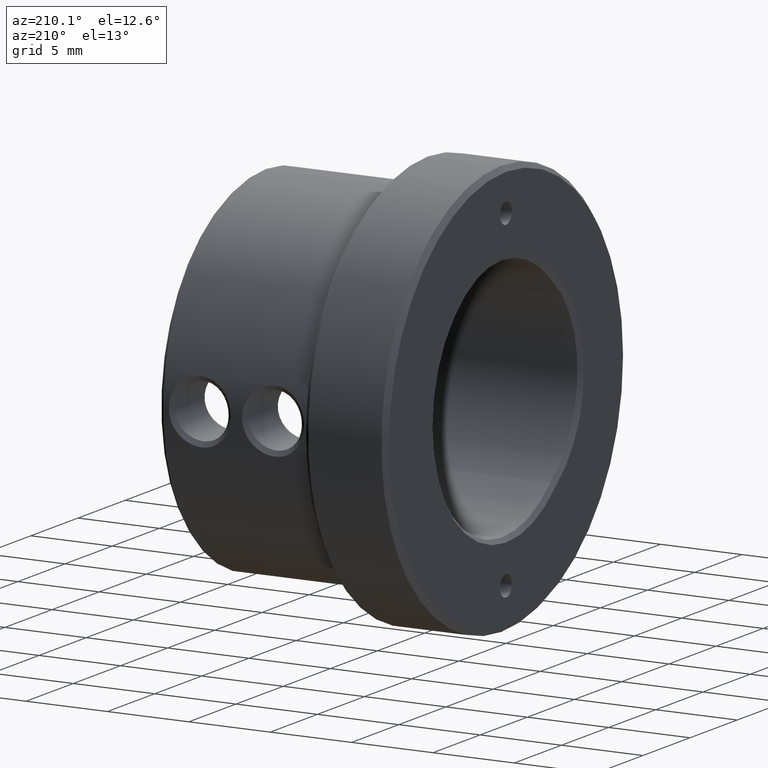
[diagram: clean part render]
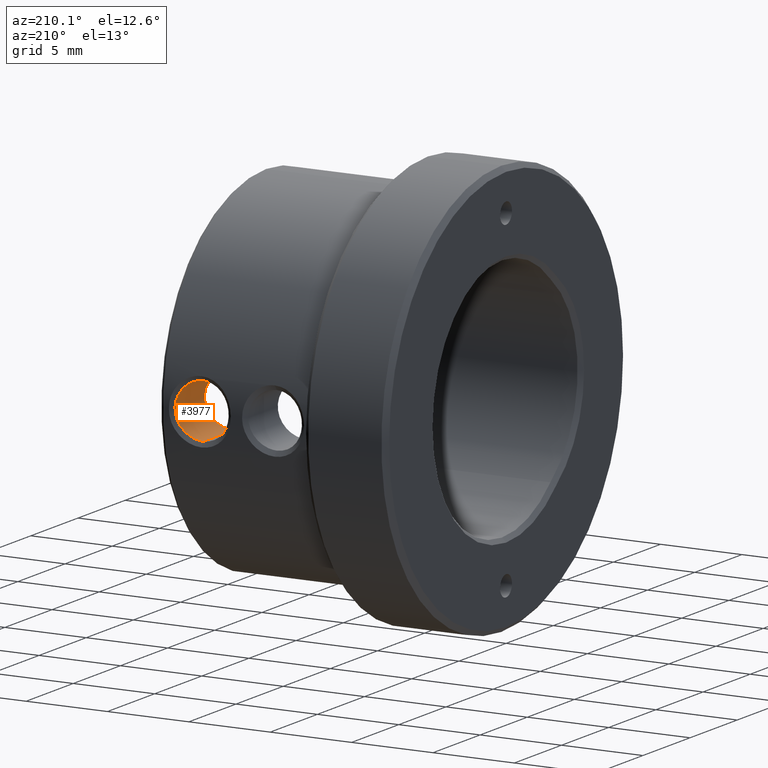
[diagram: same view with one face highlighted and labeled with its STEP entity id]
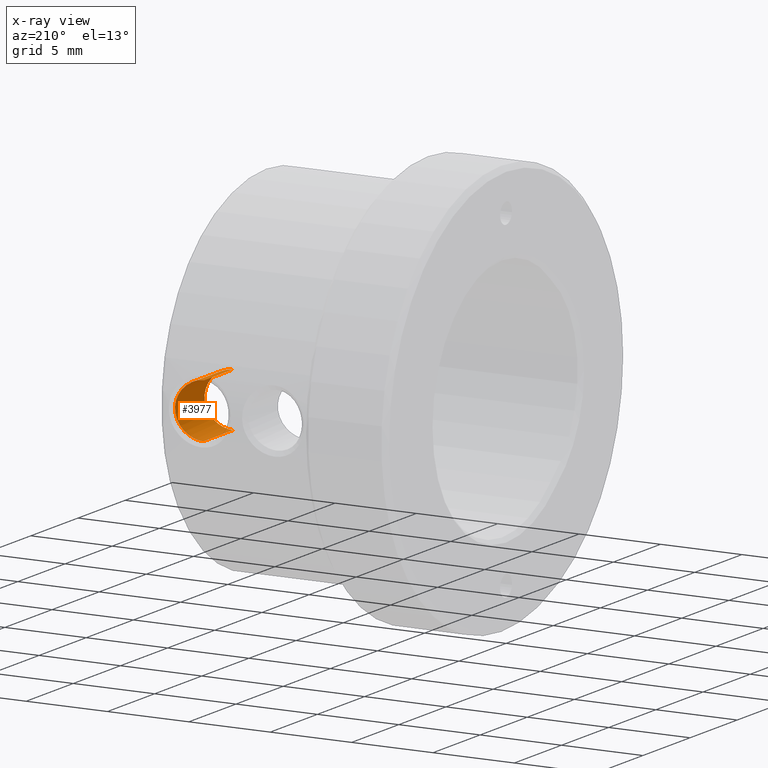
[diagram: x-ray of the same camera — body ghosted, the highlighted face saturated]
A machine part, auxiliary view. The second image highlights one B-rep face of the part: STEP entity #3977.
The next image is the same camera in x-ray: the body ghosted, the highlighted face saturated — about 0% of this face is hidden behind the body in this view.
In plain terms, the highlighted cylindrical surface (edge-blend (fillet) strip) has radius 1.65 mm, axis along (-0, 1, -0).
Its self-contained STEP definition (entity closure, byte-faithful):
#10 = EDGE_CURVE ( 'NONE', #283, #187, #2825, .T. ) ;
#29 = CARTESIAN_POINT ( 'NONE',  ( 13.50185279266266400, 10.57449944078282700, -1.311301422417678000 ) ) ;
#43 = CARTESIAN_POINT ( 'NONE',  ( 13.22997486242653200, 10.54482934213149100, -1.479990838061502800 ) ) ;
#90 = CARTESIAN_POINT ( 'NONE',  ( 14.15004257525060200, 7.550009304524274400, -0.1073363608088380200 ) ) ;
#150 = VERTEX_POINT ( 'NONE', #613 ) ;
#169 = CARTESIAN_POINT ( 'NONE',  ( 13.54514331149817600, 10.58009921703687300, 1.276785054033434000 ) ) ;
#187 = VERTEX_POINT ( 'NONE', #2838 ) ;
#200 = CARTESIAN_POINT ( 'NONE',  ( 13.52659363472409900, 10.57767985099839900, 1.291781707351821600 ) ) ;
#223 = CARTESIAN_POINT ( 'NONE',  ( 12.49999999999999800, 7.367496182557546900, -1.649999999999992600 ) ) ;
#234 = CARTESIAN_POINT ( 'NONE',  ( 14.04555390142505500, 10.66126705180824900, 0.5804709319123321200 ) ) ;
#248 = CARTESIAN_POINT ( 'NONE',  ( 13.99843976921971300, 10.65232787928356700, -0.6917183942162197200 ) ) ;
#260 = CARTESIAN_POINT ( 'NONE',  ( 13.85736222332688200, 10.62715379780379300, 0.9381398473110560400 ) ) ;
#274 = CARTESIAN_POINT ( 'NONE',  ( 13.76868341134703800, 10.61256824454002500, 1.054963706749407300 ) ) ;
#283 = VERTEX_POINT ( 'NONE', #3161 ) ;
#287 = CARTESIAN_POINT ( 'NONE',  ( 13.84659033749507500, 10.62532484020320000, 0.9536653411383090300 ) ) ;
#292 = EDGE_CURVE ( 'NONE', #1217, #187, #3208, .T. ) ;
#300 = CARTESIAN_POINT ( 'NONE',  ( 13.43818574098022500, 10.56675286552428300, -1.357330230713237300 ) ) ;
#312 = CARTESIAN_POINT ( 'NONE',  ( 12.92561353315698500, 10.52262158181047400, -1.594379576122770600 ) ) ;
#325 = CARTESIAN_POINT ( 'NONE',  ( 12.71596198067352800, 10.51341321344201600, -1.639505609610363700 ) ) ;
#328 = ORIENTED_EDGE ( 'NONE', *, *, #292, .F. ) ;
#338 = CARTESIAN_POINT ( 'NONE',  ( 13.61775947371149800, 10.58995085707568300, -1.214019414381698000 ) ) ;
#343 = CARTESIAN_POINT ( 'NONE',  ( 13.03250685552225500, 7.386047717079979000, -1.565433213492498200 ) ) ;
#349 = CARTESIAN_POINT ( 'NONE',  ( 13.15851967719978300, 10.53856377268618900, -1.513156677934572000 ) ) ;
#353 = CARTESIAN_POINT ( 'NONE',  ( 13.94149156987591600, 7.506756197861075300, 0.8311245946401043500 ) ) ;
#372 = CARTESIAN_POINT ( 'NONE',  ( 12.50000000000000000, 7.367496182557546000, 1.649999999999992600 ) ) ;
#409 = CARTESIAN_POINT ( 'NONE',  ( 12.49999999999999800, 12.69999999999999900, 0.0000000000000000000 ) ) ;
#423 = DIRECTION ( 'NONE',  ( 0.0000000000000000000, 0.0000000000000000000, 1.000000000000000000 ) ) ;
#498 = CARTESIAN_POINT ( 'NONE',  ( 13.41146711296734800, 10.56364087475635900, 1.375414028493472200 ) ) ;
#525 = VECTOR ( 'NONE', #1282, 1000.000000000000000 ) ;
#542 = CARTESIAN_POINT ( 'NONE',  ( 12.68763361166880600, 10.51338699674829000, 1.639519292952530600 ) ) ;
#554 = CARTESIAN_POINT ( 'NONE',  ( 14.13953683889284100, 10.67994984387369500, -0.1874946902816051200 ) ) ;
#570 = CARTESIAN_POINT ( 'NONE',  ( 13.92375585450378000, 10.63868444366616300, -0.8346840645606628000 ) ) ;
#587 = CARTESIAN_POINT ( 'NONE',  ( 14.10740163368346100, 10.67345024491159400, 0.3734444621139737500 ) ) ;
#601 = CARTESIAN_POINT ( 'NONE',  ( 13.71259541929947200, 10.60381709771139700, 1.119299904623153800 ) ) ;
#612 = CARTESIAN_POINT ( 'NONE',  ( 13.96089013539053700, 10.64539991397740000, -0.7671114348613753400 ) ) ;
#613 = CARTESIAN_POINT ( 'NONE',  ( 12.49999999999999800, 10.51119895810497000, 1.649999999999992600 ) ) ;
#625 = VECTOR ( 'NONE', #1392, 1000.000000000000000 ) ;
#659 = CARTESIAN_POINT ( 'NONE',  ( 13.55419953222639200, 10.58129489622965000, -1.269318168254338900 ) ) ;
#663 = CARTESIAN_POINT ( 'NONE',  ( 14.10626795706226800, 7.540131790491947200, 0.4342456539264571400 ) ) ;
#672 = CARTESIAN_POINT ( 'NONE',  ( 13.02862767469658000, 10.52870889627910600, -1.563954364623509500 ) ) ;
#706 = CARTESIAN_POINT ( 'NONE',  ( 14.06564643860013100, 7.531905221089373500, -0.5319720460853245600 ) ) ;
#773 = EDGE_CURVE ( 'NONE', #2581, #150, #817, .T. ) ;
#802 = CARTESIAN_POINT ( 'NONE',  ( 13.45737666294394500, 10.56901595150095800, 1.344121261782239800 ) ) ;
#814 = CARTESIAN_POINT ( 'NONE',  ( 13.53522367523122200, 10.57880152814122500, 1.284844636623512200 ) ) ;
#817 = LINE ( 'NONE', #2322, #625 ) ;
#856 = CARTESIAN_POINT ( 'NONE',  ( 13.33448281686945000, 10.55511831941670800, 1.423871994860604500 ) ) ;
#870 = CARTESIAN_POINT ( 'NONE',  ( 14.08750258551296000, 10.66948109065736500, 0.4506299316650356200 ) ) ;
#897 = CARTESIAN_POINT ( 'NONE',  ( 14.01455598987642200, 10.65536926290475600, -0.6552092336251627000 ) ) ;
#912 = CARTESIAN_POINT ( 'NONE',  ( 13.94258831132795400, 10.64207825610930400, 0.8010068146281015300 ) ) ;
#926 = CARTESIAN_POINT ( 'NONE',  ( 13.89873399495124900, 10.63428317704780900, -0.8754318599575081600 ) ) ;
#940 = CARTESIAN_POINT ( 'NONE',  ( 12.87453070639070100, 10.52003358061235100, -1.607146496849080700 ) ) ;
#949 = CARTESIAN_POINT ( 'NONE',  ( 13.45357759165216800, 10.56857639788674100, -1.346650817351740000 ) ) ;
#951 = CARTESIAN_POINT ( 'NONE',  ( 12.49999999999999800, 12.69999999999999900, -1.649999999999992600 ) ) ;
#964 = CARTESIAN_POINT ( 'NONE',  ( 13.69334224132248700, 10.60089397097828500, -1.140085640883579100 ) ) ;
#984 = CARTESIAN_POINT ( 'NONE',  ( 12.92963808625788700, 7.379251367485811600, -1.596753308477471000 ) ) ;
#999 = CYLINDRICAL_SURFACE ( 'NONE', #3582, 1.649999999999992600 ) ;
#1126 = CARTESIAN_POINT ( 'NONE',  ( 12.87280304157318000, 10.51982800809529900, 1.608163244559296600 ) ) ;
#1140 = CARTESIAN_POINT ( 'NONE',  ( 13.25363207138168400, 10.54707123045887400, 1.467898964334117400 ) ) ;
#1171 = CARTESIAN_POINT ( 'NONE',  ( 12.50007305001105000, 10.51119895833771200, -1.649999998447612100 ) ) ;
#1182 = CARTESIAN_POINT ( 'NONE',  ( 14.10811840686909800, 10.67359280389430200, -0.3729758846689149600 ) ) ;
#1196 = CARTESIAN_POINT ( 'NONE',  ( 14.09459451958072100, 10.67089056271104800, 0.4248165443753121300 ) ) ;
#1213 = CARTESIAN_POINT ( 'NONE',  ( 13.87977035692995600, 10.63099251425032100, -0.9048664149488915300 ) ) ;
#1217 = VERTEX_POINT ( 'NONE', #223 ) ;
#1229 = CARTESIAN_POINT ( 'NONE',  ( 13.90205205895523100, 10.63485839146387600, 0.8703360134052400300 ) ) ;
#1241 = CARTESIAN_POINT ( 'NONE',  ( 13.88743421362764300, 10.63231914884653600, -0.8930709768100814100 ) ) ;
#1252 = CARTESIAN_POINT ( 'NONE',  ( 13.42400809575222800, 10.56508959228669300, -1.367026029683493700 ) ) ;
#1281 = CARTESIAN_POINT ( 'NONE',  ( 13.71340142044455000, 10.60393948327767800, -1.118430746917566500 ) ) ;
#1282 = DIRECTION ( 'NONE',  ( -0.0000000000000000000, 1.000000000000000000, -0.0000000000000000000 ) ) ;
#1292 = CARTESIAN_POINT ( 'NONE',  ( 13.74937763421038300, 10.60949665413757600, -1.078093627623458500 ) ) ;
#1297 = CARTESIAN_POINT ( 'NONE',  ( 12.60787042510165500, 7.367496182557549600, -1.649999999999993700 ) ) ;
#1307 = CARTESIAN_POINT ( 'NONE',  ( 13.30196903907764200, 10.55181405158933700, -1.442052725753269600 ) ) ;
#1311 = CARTESIAN_POINT ( 'NONE',  ( 14.14991446245525700, 7.549981306365785000, 0.2166302022949852200 ) ) ;
#1338 = CARTESIAN_POINT ( 'NONE',  ( 13.81866656118989500, 7.483076724350285100, 1.014718489095182800 ) ) ;
#1392 = DIRECTION ( 'NONE',  ( -0.0000000000000000000, 1.000000000000000000, -0.0000000000000000000 ) ) ;
#1415 = ORIENTED_EDGE ( 'NONE', *, *, #3099, .F. ) ;
#1435 = CARTESIAN_POINT ( 'NONE',  ( 13.00198156321303600, 10.52709918790123200, 1.572020120420941900 ) ) ;
#1444 = CARTESIAN_POINT ( 'NONE',  ( 13.26721656025556800, 10.54837561431051200, 1.460834341006131500 ) ) ;
#1486 = CARTESIAN_POINT ( 'NONE',  ( 13.43643056384002900, 10.56652183792695600, 1.358740064865041000 ) ) ;
#1495 = FACE_OUTER_BOUND ( 'NONE', #3673, .T. ) ;
#1501 = CARTESIAN_POINT ( 'NONE',  ( 13.83509244026767400, 10.62339561440419400, 0.9696441092873896400 ) ) ;
#1516 = CARTESIAN_POINT ( 'NONE',  ( 13.84398699523571500, 10.62487612993530000, -0.9575590198727382800 ) ) ;
#1529 = CARTESIAN_POINT ( 'NONE',  ( 13.85855553763005900, 10.62734714894130900, -0.9366987494135882200 ) ) ;
#1542 = CARTESIAN_POINT ( 'NONE',  ( 14.11283887027854600, 10.67454439854736100, 0.3492805228495125500 ) ) ;
#1555 = CARTESIAN_POINT ( 'NONE',  ( 13.79369876186423700, 10.61656378894717700, 1.024562569287823100 ) ) ;
#1581 = CARTESIAN_POINT ( 'NONE',  ( 13.64119420932378700, 10.59325214387721000, -1.192282160429885900 ) ) ;
#1606 = CARTESIAN_POINT ( 'NONE',  ( 13.42803921057861100, 10.56556037963180800, -1.364287749492495400 ) ) ;
#1743 = CARTESIAN_POINT ( 'NONE',  ( 13.22908984128689400, 10.54477632589443600, 1.480242099063689300 ) ) ;
#1759 = CARTESIAN_POINT ( 'NONE',  ( 13.64191043547844400, 10.59335887204389700, 1.191540974571782000 ) ) ;
#1788 = CARTESIAN_POINT ( 'NONE',  ( 13.04101187701747100, 10.52963640937855100, 1.559215111295309000 ) ) ;
#1804 = CARTESIAN_POINT ( 'NONE',  ( 13.78533431137923200, 10.61523347467841200, -1.034615442761742400 ) ) ;
#1818 = CARTESIAN_POINT ( 'NONE',  ( 13.88715012517975100, 10.63225563174813000, 0.8939457706591248400 ) ) ;
#1833 = CARTESIAN_POINT ( 'NONE',  ( 13.79217119321132000, 10.61633553422964100, -1.026102104697988100 ) ) ;
#1845 = CARTESIAN_POINT ( 'NONE',  ( 13.86438660171439900, 10.62835082104898600, 0.9278942717195518600 ) ) ;
#1859 = CARTESIAN_POINT ( 'NONE',  ( 14.14745026336718300, 10.68156881530488200, -0.1065309795955218100 ) ) ;
#1869 = CARTESIAN_POINT ( 'NONE',  ( 13.55967089348821200, 10.58202137119916800, -1.264768244759091800 ) ) ;
#1879 = CARTESIAN_POINT ( 'NONE',  ( 13.25470755418212200, 10.54714363768899200, -1.467553317740013100 ) ) ;
#1918 = CARTESIAN_POINT ( 'NONE',  ( 13.37081464908583000, 10.55904684068613600, -1.401751601075685000 ) ) ;
#1937 = CARTESIAN_POINT ( 'NONE',  ( 12.71741357021782000, 7.369941011968327500, -1.639189236416049600 ) ) ;
#2046 = CARTESIAN_POINT ( 'NONE',  ( 13.54099817502924100, 10.57955522987302800, 1.280170534579369500 ) ) ;
#2098 = CARTESIAN_POINT ( 'NONE',  ( 13.10628566926367500, 10.53442527370225300, 1.534637921585598800 ) ) ;
#2113 = CARTESIAN_POINT ( 'NONE',  ( 13.94825265187140100, 10.64310193889314800, 0.7907334479613519200 ) ) ;
#2125 = CARTESIAN_POINT ( 'NONE',  ( 14.00312008477333400, 10.65321824740290800, 0.6806644647905491000 ) ) ;
#2142 = CARTESIAN_POINT ( 'NONE',  ( 13.77181548391838500, 10.61306726887703500, 1.051185709402028000 ) ) ;
#2157 = CARTESIAN_POINT ( 'NONE',  ( 13.75160630099867900, 10.60986189123555900, 1.075267538223696000 ) ) ;
#2170 = CARTESIAN_POINT ( 'NONE',  ( 14.04523460991524300, 10.66122593241683700, -0.5792292672089799400 ) ) ;
#2171 = CARTESIAN_POINT ( 'NONE',  ( 12.60937620261312600, 7.367496182557547800, 1.649999999999993000 ) ) ;
#2181 = CARTESIAN_POINT ( 'NONE',  ( 13.55018044501534100, 10.58076242680782600, -1.272648784440860900 ) ) ;
#2182 = B_SPLINE_CURVE_WITH_KNOTS ( 'NONE', 3,
 ( #3411, #2171, #2837, #3172, #4051, #2410, #3202, #2226, #3213, #1338, #353, #663, #1311, #90, #3191, #2578, #706, #3165, #3512, #2841, #2240, #2541, #3528, #343, #984, #1937, #1297, #3485 ),
 .UNSPECIFIED., .F., .F.,
 ( 4, 2, 2, 2, 2, 2, 2, 2, 2, 2, 2, 2, 2, 4 ),
 ( 1.748223473168675600E-018, 0.0003233922857633127900, 0.0006467845715266238400, 0.0009701768572899349000, 0.001293569143053246000, 0.001940353714579871700, 0.002587138286106497500, 0.002910530571869809900, 0.003233922857633123600, 0.003880707429159750400, 0.004204099714923065400, 0.004527492000686380800, 0.004850884286449695300, 0.005174276572213010700 ),
 .UNSPECIFIED. ) ;
#2196 = CARTESIAN_POINT ( 'NONE',  ( 13.52425579209344500, 10.57734845955107300, -1.293943349909861200 ) ) ;
#2221 = CARTESIAN_POINT ( 'NONE',  ( 13.29201176369286800, 10.55081147121497200, -1.447555326873350300 ) ) ;
#2226 = CARTESIAN_POINT ( 'NONE',  ( 13.50660650665226500, 7.435412453520299000, 1.311811339631211700 ) ) ;
#2240 = CARTESIAN_POINT ( 'NONE',  ( 13.50693362418114800, 7.435460795871580200, -1.311529486362892800 ) ) ;
#2322 = CARTESIAN_POINT ( 'NONE',  ( 12.49999999999999800, 12.69999999999999900, 1.649999999999992600 ) ) ;
#2363 = CARTESIAN_POINT ( 'NONE',  ( 13.12050609812391900, 10.53552787224122200, 1.528933806431372400 ) ) ;
#2376 = CARTESIAN_POINT ( 'NONE',  ( 13.15624974858405100, 10.53838189260419100, 1.514101012652143300 ) ) ;
#2392 = CARTESIAN_POINT ( 'NONE',  ( 12.71454791164147300, 10.51407075882433300, 1.636217892297527900 ) ) ;
#2410 = CARTESIAN_POINT ( 'NONE',  ( 13.23284543501949000, 7.403186414490175300, 1.482269878471757000 ) ) ;
#2434 = CARTESIAN_POINT ( 'NONE',  ( 14.15002815474513100, 10.68210539345430600, -0.05264929115150699500 ) ) ;
#2447 = CARTESIAN_POINT ( 'NONE',  ( 13.82009655275913000, 10.62090228344689700, -0.9899622070407756400 ) ) ;
#2460 = CARTESIAN_POINT ( 'NONE',  ( 14.01851522152849800, 10.65612298475641900, 0.6456086138668532000 ) ) ;
#2470 = CARTESIAN_POINT ( 'NONE',  ( 13.81107416918914100, 10.61940347187495300, 1.002152989232473400 ) ) ;
#2484 = CARTESIAN_POINT ( 'NONE',  ( 13.98044224812517000, 10.64899204020305800, -0.7286853008006908300 ) ) ;
#2496 = CARTESIAN_POINT ( 'NONE',  ( 13.18091932549541000, 10.54046260460283000, -1.503191622078672300 ) ) ;
#2510 = CARTESIAN_POINT ( 'NONE',  ( 13.77754483176138000, 10.61398278860368700, -1.044214883193562900 ) ) ;
#2534 = ORIENTED_EDGE ( 'NONE', *, *, #773, .T. ) ;
#2535 = CARTESIAN_POINT ( 'NONE',  ( 13.08057703058976500, 10.53233839698854400, -1.545508169017823800 ) ) ;
#2541 = CARTESIAN_POINT ( 'NONE',  ( 13.32849941830589700, 7.413404967325732300, -1.430948507449755400 ) ) ;
#2548 = CARTESIAN_POINT ( 'NONE',  ( 13.78072989338759900, 10.61449319918635800, -1.040309735892724000 ) ) ;
#2578 = CARTESIAN_POINT ( 'NONE',  ( 14.09692709993289300, 7.538550886941292700, -0.4289467072958162400 ) ) ;
#2581 = VERTEX_POINT ( 'NONE', #372 ) ;
#2665 = CARTESIAN_POINT ( 'NONE',  ( 12.92422710514054400, 10.52242015331941400, 1.595450518982158600 ) ) ;
#2678 = CARTESIAN_POINT ( 'NONE',  ( 13.49004255352842400, 10.57304113641827000, 1.320037405713979900 ) ) ;
#2691 = CARTESIAN_POINT ( 'NONE',  ( 12.79677021771845300, 10.51673060700476500, 1.623297637562116200 ) ) ;
#2717 = CARTESIAN_POINT ( 'NONE',  ( 13.30049051682268900, 10.55164134469076100, 1.443034241191053300 ) ) ;
#2732 = CARTESIAN_POINT ( 'NONE',  ( 14.13622498376544100, 10.67927450269545600, -0.2145058197327739100 ) ) ;
#2745 = CARTESIAN_POINT ( 'NONE',  ( 13.73940957826074800, 10.60795598283214100, 1.089285949218274500 ) ) ;
#2759 = CARTESIAN_POINT ( 'NONE',  ( 14.07216055830997400, 10.66645840868817200, -0.5015338358493161000 ) ) ;
#2772 = CARTESIAN_POINT ( 'NONE',  ( 14.01381349824670700, 10.65523278955054900, 0.6565384949899613100 ) ) ;
#2786 = CARTESIAN_POINT ( 'NONE',  ( 13.96802284109889100, 10.64669695330299400, 0.7537834274654632300 ) ) ;
#2797 = CARTESIAN_POINT ( 'NONE',  ( 12.50008765994631500, 10.51119895859125800, -1.649999997671427000 ) ) ;
#2811 = CARTESIAN_POINT ( 'NONE',  ( 13.57824288595142000, 10.58451744365789800, -1.249005201491848500 ) ) ;
#2825 = B_SPLINE_CURVE_WITH_KNOTS ( 'NONE', 3,
 ( #3724, #1171, #3412, #3357, #3680 ),
 .UNSPECIFIED., .F., .F.,
 ( 4, 1, 4 ),
 ( 0.5000000000000000000, 0.5000042611954708100, 0.5000085223909416200 ),
 .UNSPECIFIED. ) ;
#2837 = CARTESIAN_POINT ( 'NONE',  ( 12.71685622990116100, 7.369930893026880100, 1.639232628155622200 ) ) ;
#2838 = CARTESIAN_POINT ( 'NONE',  ( 12.49999999999962300, 10.51119895783425300, -1.650000000000766000 ) ) ;
#2841 = CARTESIAN_POINT ( 'NONE',  ( 13.58990544707439300, 7.447292679067044400, -1.243519294251574000 ) ) ;
#2849 = CARTESIAN_POINT ( 'NONE',  ( 12.60723141339284000, 10.51120081799046300, -1.649994305419495000 ) ) ;
#2922 = ORIENTED_EDGE ( 'NONE', *, *, #10, .T. ) ;
#2994 = CARTESIAN_POINT ( 'NONE',  ( 13.57700674748917500, 10.58433026265904600, 1.250313732770919900 ) ) ;
#3008 = CARTESIAN_POINT ( 'NONE',  ( 12.55330134139552500, 10.51119895810497000, 1.649999999999992800 ) ) ;
#3025 = CARTESIAN_POINT ( 'NONE',  ( 12.49999999999999800, 10.51119895810497000, 1.649999999999992600 ) ) ;
#3036 = CARTESIAN_POINT ( 'NONE',  ( 13.39280909713948700, 10.56152060478715200, 1.387602744349793600 ) ) ;
#3051 = CARTESIAN_POINT ( 'NONE',  ( 14.12322437635030600, 10.67663862266425700, -0.2971642294861284700 ) ) ;
#3067 = CARTESIAN_POINT ( 'NONE',  ( 13.92292575389110400, 10.63855485533097000, 0.8354435869501272100 ) ) ;
#3082 = CARTESIAN_POINT ( 'NONE',  ( 13.96801147985783100, 10.64670271293620900, -0.7534147680013524300 ) ) ;
#3094 = CARTESIAN_POINT ( 'NONE',  ( 13.98648908713048300, 10.65010090065005400, 0.7170147276197305100 ) ) ;
#3099 = EDGE_CURVE ( 'NONE', #2581, #1217, #2182, .T. ) ;
#3110 = CARTESIAN_POINT ( 'NONE',  ( 14.06406455742851100, 10.66486378163608100, 0.5283268282863068400 ) ) ;
#3135 = CARTESIAN_POINT ( 'NONE',  ( 13.32468464020935700, 10.55414372084797700, -1.429183559832083900 ) ) ;
#3161 = CARTESIAN_POINT ( 'NONE',  ( 12.50008765994631500, 10.51119895859125800, -1.649999997671427000 ) ) ;
#3165 = CARTESIAN_POINT ( 'NONE',  ( 13.94111092478094000, 7.506676405214965300, -0.8322688367030173200 ) ) ;
#3172 = CARTESIAN_POINT ( 'NONE',  ( 12.92820064754772200, 7.379174109485786600, 1.597108148841726000 ) ) ;
#3173 = CARTESIAN_POINT ( 'NONE',  ( 13.76414031743254200, 10.61183882123751600, -1.060567066340179600 ) ) ;
#3191 = CARTESIAN_POINT ( 'NONE',  ( 14.13922454952171000, 7.547624158386397200, -0.2170583249850988600 ) ) ;
#3202 = CARTESIAN_POINT ( 'NONE',  ( 13.32749005000347300, 7.413288169064038900, 1.431560640407856900 ) ) ;
#3208 = LINE ( 'NONE', #951, #525 ) ;
#3213 = CARTESIAN_POINT ( 'NONE',  ( 13.59114395282125400, 7.447481726496987700, 1.242342002891955800 ) ) ;
#3297 = CARTESIAN_POINT ( 'NONE',  ( 13.56008964537364200, 10.58206652724250900, 1.264517834281091700 ) ) ;
#3314 = CARTESIAN_POINT ( 'NONE',  ( 13.61731029918016800, 10.58988776395963100, 1.214432237647982100 ) ) ;
#3354 = CARTESIAN_POINT ( 'NONE',  ( 13.40460518445541300, 10.56285563331720400, 1.379941636562388900 ) ) ;
#3357 = CARTESIAN_POINT ( 'NONE',  ( 12.50001461004652700, 10.51119895765256700, -1.649999999999993000 ) ) ;
#3371 = CARTESIAN_POINT ( 'NONE',  ( 14.09545161821839300, 10.67104775040027900, -0.4241864829923791500 ) ) ;
#3385 = CARTESIAN_POINT ( 'NONE',  ( 14.03449014116982100, 10.65916270288027000, -0.6070576520815983400 ) ) ;
#3399 = CARTESIAN_POINT ( 'NONE',  ( 13.92963715528648900, 10.63975239733558100, 0.8238996038869252900 ) ) ;
#3410 = CARTESIAN_POINT ( 'NONE',  ( 14.14994299435673000, 10.68208691948845700, 0.1079238278357161100 ) ) ;
#3411 = CARTESIAN_POINT ( 'NONE',  ( 12.50000000000000000, 7.367496182557546000, 1.649999999999992600 ) ) ;
#3412 = CARTESIAN_POINT ( 'NONE',  ( 12.50004383008465000, 10.51119895791288200, -1.649999999611895000 ) ) ;
#3425 = CARTESIAN_POINT ( 'NONE',  ( 13.80764176894196100, 10.61884853070784000, -1.006441386709225900 ) ) ;
#3436 = CARTESIAN_POINT ( 'NONE',  ( 13.33614694043964000, 10.55534338138027600, -1.422511764464037000 ) ) ;
#3450 = CARTESIAN_POINT ( 'NONE',  ( 13.46946675978283500, 10.57050434082044000, -1.335220697610063800 ) ) ;
#3464 = CARTESIAN_POINT ( 'NONE',  ( 12.95129402366139500, 10.52404576984844600, -1.587311822698205900 ) ) ;
#3480 = CARTESIAN_POINT ( 'NONE',  ( 13.55066478980084800, 10.58082681791920800, -1.272245560212187200 ) ) ;
#3485 = CARTESIAN_POINT ( 'NONE',  ( 12.49999999999999800, 7.367496182557546900, -1.649999999999992600 ) ) ;
#3491 = CARTESIAN_POINT ( 'NONE',  ( 13.39430173534117200, 10.56165511716864500, -1.386918323381777700 ) ) ;
#3512 = CARTESIAN_POINT ( 'NONE',  ( 13.81973703774397100, 7.483234815591836200, -1.013770499748462700 ) ) ;
#3528 = CARTESIAN_POINT ( 'NONE',  ( 13.23185870018961600, 7.403090873739659900, -1.482743248185748300 ) ) ;
#3582 = AXIS2_PLACEMENT_3D ( 'NONE', #409, #3826, #423 ) ;
#3620 = CARTESIAN_POINT ( 'NONE',  ( 13.37517509032580400, 10.55954446753527200, 1.398894506325995700 ) ) ;
#3634 = CARTESIAN_POINT ( 'NONE',  ( 13.19241860385793600, 10.54143202512839000, 1.498109317134571200 ) ) ;
#3662 = CARTESIAN_POINT ( 'NONE',  ( 12.60697003955525700, 10.51174596776580100, 1.647415232236071300 ) ) ;
#3673 = EDGE_LOOP ( 'NONE', ( #328, #1415, #2534, #3976, #2922 ) ) ;
#3676 = CARTESIAN_POINT ( 'NONE',  ( 13.50668649399399100, 10.57512473251600000, 1.307456358103992400 ) ) ;
#3680 = CARTESIAN_POINT ( 'NONE',  ( 12.49999999999962300, 10.51119895783425300, -1.650000000000766000 ) ) ;
#3690 = CARTESIAN_POINT ( 'NONE',  ( 14.13953237257332200, 10.67992757707012100, 0.2153399202634034800 ) ) ;
#3705 = CARTESIAN_POINT ( 'NONE',  ( 14.12823520001998500, 10.67765245226995700, -0.2685052655225346200 ) ) ;
#3721 = CARTESIAN_POINT ( 'NONE',  ( 13.69149641550623500, 10.60062174987903400, 1.141956929386495100 ) ) ;
#3724 = CARTESIAN_POINT ( 'NONE',  ( 12.50008765994631500, 10.51119895859125800, -1.649999997671427000 ) ) ;
#3734 = CARTESIAN_POINT ( 'NONE',  ( 13.86718481930819300, 10.62882911901468200, 0.9237733497832694200 ) ) ;
#3757 = CARTESIAN_POINT ( 'NONE',  ( 13.56564426967136000, 10.58282091868026600, -1.259735178174844500 ) ) ;
#3767 = EDGE_CURVE ( 'NONE', #150, #283, #4063, .T. ) ;
#3772 = CARTESIAN_POINT ( 'NONE',  ( 12.85088810939414100, 10.51894187380322200, -1.612493387118470800 ) ) ;
#3797 = CARTESIAN_POINT ( 'NONE',  ( 13.58751197721905200, 10.58577836699690200, -1.240967382446837200 ) ) ;
#3826 = DIRECTION ( 'NONE',  ( -0.0000000000000000000, 1.000000000000000000, -0.0000000000000000000 ) ) ;
#3938 = CARTESIAN_POINT ( 'NONE',  ( 12.76836074596082500, 10.51571178780682700, 1.628257445090189400 ) ) ;
#3976 = ORIENTED_EDGE ( 'NONE', *, *, #3767, .T. ) ;
#3977 = ADVANCED_FACE ( 'NONE', ( #1495 ), #999, .F. ) ;
#3993 = CARTESIAN_POINT ( 'NONE',  ( 13.08016706748839800, 10.53247018713548800, 1.544701277569543200 ) ) ;
#4004 = CARTESIAN_POINT ( 'NONE',  ( 13.76384954008928000, 10.61179926626488500, 1.060768717801864100 ) ) ;
#4020 = CARTESIAN_POINT ( 'NONE',  ( 13.94299463480321700, 10.64214587359395000, -0.8005662050292812200 ) ) ;
#4035 = CARTESIAN_POINT ( 'NONE',  ( 13.77245165006268100, 10.61316860925659200, 1.050419261778731400 ) ) ;
#4049 = CARTESIAN_POINT ( 'NONE',  ( 13.87524759123915900, 10.63021315771600700, -0.9117182507713173000 ) ) ;
#4051 = CARTESIAN_POINT ( 'NONE',  ( 13.03318193136302800, 7.386094341937082100, 1.565216742921430300 ) ) ;
#4062 = CARTESIAN_POINT ( 'NONE',  ( 14.06368207729734000, 10.66480000120562700, -0.5274039294605610300 ) ) ;
#4063 = B_SPLINE_CURVE_WITH_KNOTS ( 'NONE', 3,
 ( #3025, #3008, #3662, #542, #2392, #3938, #2691, #1126, #2665, #1435, #1788, #3993, #2098, #2363, #2376, #3634, #1743, #1140, #1444, #2717, #856, #3620, #3036, #3354, #498, #1486, #802, #2678, #3676, #200, #814, #2046, #169, #3297, #2994, #3314, #1759, #3721, #601, #2745, #2157, #4004, #274, #2142, #4035, #1555, #2470, #1501, #287, #260, #1845, #3734, #1818, #1229, #3067, #3399, #912, #2113, #2786, #3094, #2125, #2772, #2460, #234, #3110, #870, #1196, #587, #1542, #3690, #3410, #2434, #1859, #554, #2732, #3705, #3051, #1182, #3371, #2759, #4062, #2170, #3385, #897, #248, #2484, #3082, #612, #4020, #570, #926, #1241, #1213, #4049, #1529, #1516, #2447, #3425, #1833, #1804, #2548, #2510, #3173, #1292, #1281, #964, #1581, #338, #3797, #2811, #3757, #1869, #659, #3480, #2181, #2196, #29, #3450, #949, #300, #1606, #1252, #3491, #1918, #3436, #3135, #1307, #2221, #1879, #43, #2496, #349, #2535, #672, #3464, #312, #940, #3772, #325, #2849, #2797 ),
 .UNSPECIFIED., .F., .F.,
 ( 4, 2, 2, 2, 2, 1, 2, 2, 1, 2, 2, 1, 1, 2, 2, 2, 1, 1, 2, 2, 2, 2, 2, 1, 1, 2, 2, 2, 1, 2, 2, 2, 2, 2, 1, 2, 2, 2, 2, 2, 2, 2, 2, 2, 2, 2, 2, 1, 2, 2, 1, 1, 2, 2, 2, 1, 1, 2, 2, 2, 2, 2, 2, 1, 2, 2, 2, 1, 2, 2, 2, 2, 2, 2, 2, 2, 2, 2, 4 ),
 ( 0.0000000000000000000, 0.01562499999999570500, 0.02343749999999380700, 0.03124999999999190900, 0.04687499999998813400, 0.05468749999998649700, 0.05859374999998568500, 0.06249999999998487300, 0.07031249999998326300, 0.07421874999998268100, 0.07812499999998208400, 0.08593749999998100100, 0.08984374999998043200, 0.09179687499998019600, 0.09374999999997994700, 0.1015624999999783900, 0.1054687499999774300, 0.1074218749999769100, 0.1083984374999767000, 0.1093749999999764800, 0.1171874999999762400, 0.1249999999999759900, 0.1328124999999757400, 0.1367187499999758000, 0.1386718749999757700, 0.1396484374999758200, 0.1406249999999758800, 0.1484374999999762100, 0.1523437499999763800, 0.1542968749999764600, 0.1562499999999765200, 0.1640624999999776300, 0.1679687499999781800, 0.1718749999999787700, 0.1796874999999798500, 0.1835937499999803200, 0.1874999999999807700, 0.2031249999999823200, 0.2109374999999830400, 0.2187499999999837400, 0.2499999999999864600, 0.2656249999999878400, 0.2734374999999885100, 0.2812499999999891200, 0.2968749999999903400, 0.3046874999999910100, 0.3124999999999916700, 0.3203124999999923900, 0.3242187499999926200, 0.3281249999999928900, 0.3359374999999933400, 0.3398437499999936700, 0.3417968749999937300, 0.3437499999999937800, 0.3515624999999937800, 0.3554687499999936200, 0.3574218749999936200, 0.3583984374999937800, 0.3593749999999939500, 0.3671874999999931200, 0.3749999999999922300, 0.3828124999999913400, 0.3867187499999907300, 0.3886718749999904500, 0.3896484374999902900, 0.3906249999999901700, 0.3984374999999902300, 0.4023437499999902900, 0.4042968749999902900, 0.4062499999999902900, 0.4140624999999910100, 0.4179687499999915100, 0.4218749999999920600, 0.4296874999999927800, 0.4374999999999935100, 0.4531249999999950000, 0.4609374999999957300, 0.4687499999999965000, 0.5000000000000000000 ),
 .UNSPECIFIED. ) ;